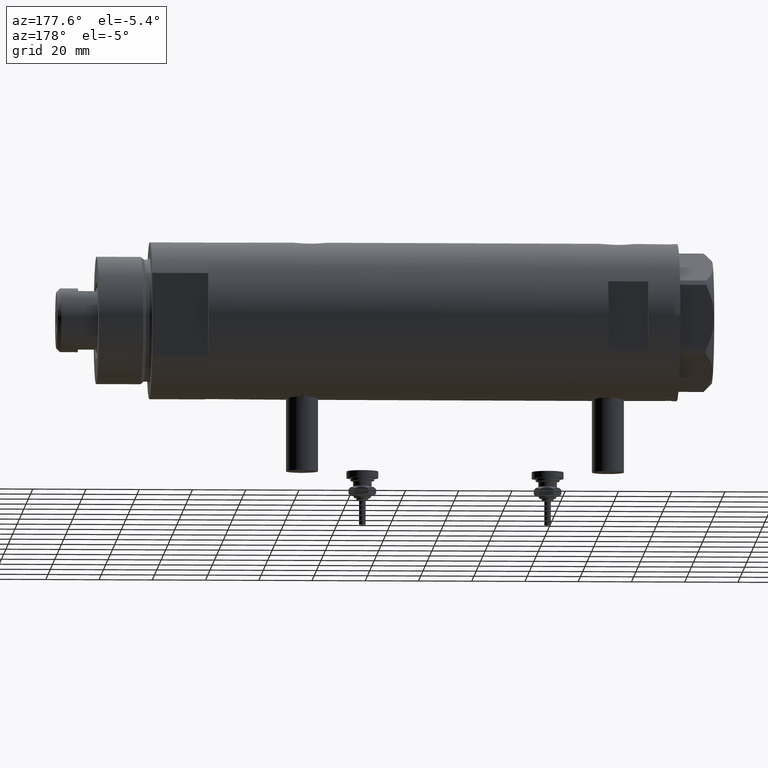
[diagram: clean part render]
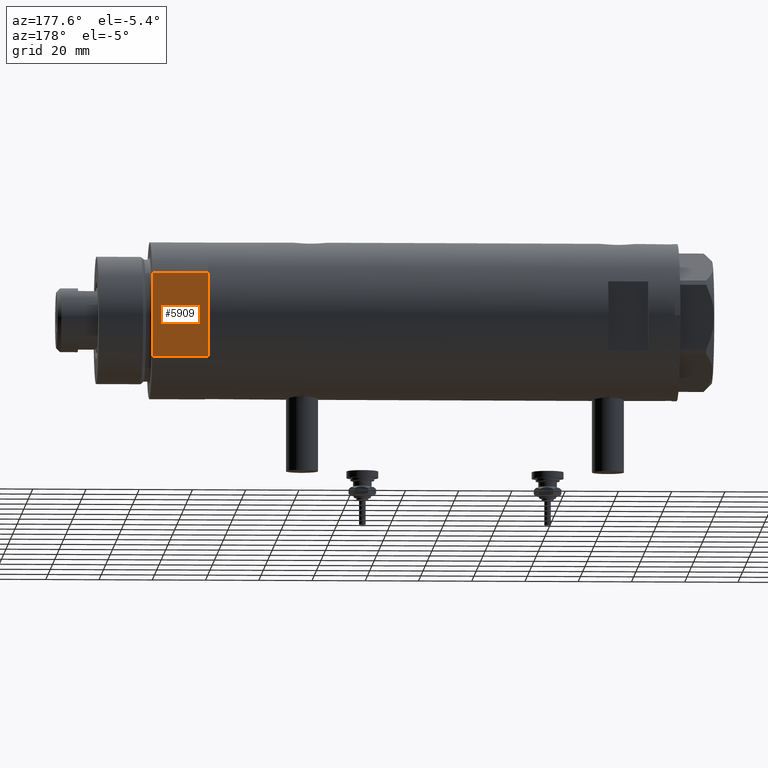
[diagram: same view with one face highlighted and labeled with its STEP entity id]
A machine part, auxiliary view. The second image highlights one B-rep face of the part: STEP entity #5909.
In plain terms, the highlighted planar face has unit normal (0, -1, -0).
Its self-contained STEP definition (entity closure, byte-faithful):
#4 = DIRECTION ( 'NONE',  ( 0.000000000000000000, -1.000000000000000000, 0.000000000000000000 ) ) ;
#62 = CARTESIAN_POINT ( 'NONE',  ( -15.66045976336583401, 25.00000000000000000, 0.000000000000000000 ) ) ;
#159 = EDGE_CURVE ( 'NONE', #5924, #4386, #3778, .T. ) ;
#371 = EDGE_CURVE ( 'NONE', #5373, #1771, #2660, .T. ) ;
#398 = ORIENTED_EDGE ( 'NONE', *, *, #1541, .T. ) ;
#450 = ORIENTED_EDGE ( 'NONE', *, *, #371, .F. ) ;
#526 = CARTESIAN_POINT ( 'NONE',  ( -15.66045976336583401, 25.00000000000000000, 0.000000000000000000 ) ) ;
#842 = VECTOR ( 'NONE', #2351, 1000.000000000000000 ) ;
#943 = LINE ( 'NONE', #4642, #842 ) ;
#1113 = CARTESIAN_POINT ( 'NONE',  ( 7.141428428542853091, 25.00000000000000000, 0.000000000000000000 ) ) ;
#1169 = EDGE_CURVE ( 'NONE', #5778, #5373, #1904, .T. ) ;
#1177 = EDGE_CURVE ( 'NONE', #4744, #1771, #943, .T. ) ;
#1210 = VECTOR ( 'NONE', #2828, 1000.000000000000000 ) ;
#1243 = ORIENTED_EDGE ( 'NONE', *, *, #159, .F. ) ;
#1252 = CARTESIAN_POINT ( 'NONE',  ( -15.66045976336583401, 25.00000000000000000, 0.000000000000000000 ) ) ;
#1342 = CARTESIAN_POINT ( 'NONE',  ( 15.66045976336582690, 25.00000000000000000, 0.000000000000000000 ) ) ;
#1541 = EDGE_CURVE ( 'NONE', #5924, #4744, #3187, .T. ) ;
#1704 = FACE_OUTER_BOUND ( 'NONE', #4564, .T. ) ;
#1771 = VERTEX_POINT ( 'NONE', #1989 ) ;
#1904 = LINE ( 'NONE', #2802, #5544 ) ;
#1989 = CARTESIAN_POINT ( 'NONE',  ( 15.66045976336583045, 24.99999999999999645, 20.99999999999999645 ) ) ;
#2029 = CARTESIAN_POINT ( 'NONE',  ( -15.66045976336583045, 24.99999999999999645, 21.00000000000000355 ) ) ;
#2300 = PLANE ( 'NONE',  #5099 ) ;
#2351 = DIRECTION ( 'NONE',  ( 1.000000000000000000, 0.000000000000000000, 0.000000000000000000 ) ) ;
#2374 = VECTOR ( 'NONE', #5029, 1000.000000000000000 ) ;
#2437 = DIRECTION ( 'NONE',  ( 1.000000000000000000, 0.000000000000000000, 0.000000000000000000 ) ) ;
#2660 = LINE ( 'NONE', #4090, #4103 ) ;
#2802 = CARTESIAN_POINT ( 'NONE',  ( -15.66045976336583401, 25.00000000000000000, 0.000000000000000000 ) ) ;
#2828 = DIRECTION ( 'NONE',  ( 1.000000000000000000, 0.000000000000000000, 0.000000000000000000 ) ) ;
#3059 = ORIENTED_EDGE ( 'NONE', *, *, #4266, .F. ) ;
#3187 = LINE ( 'NONE', #5838, #2374 ) ;
#3778 = LINE ( 'NONE', #526, #1210 ) ;
#3864 = ORIENTED_EDGE ( 'NONE', *, *, #1169, .F. ) ;
#4090 = CARTESIAN_POINT ( 'NONE',  ( 15.66045976336583401, 25.00000000000000000, 0.000000000000000000 ) ) ;
#4103 = VECTOR ( 'NONE', #4152, 1000.000000000000000 ) ;
#4152 = DIRECTION ( 'NONE',  ( -0.000000000000000000, -0.000000000000000000, 1.000000000000000000 ) ) ;
#4266 = EDGE_CURVE ( 'NONE', #4386, #5778, #5523, .T. ) ;
#4386 = VERTEX_POINT ( 'NONE', #4472 ) ;
#4472 = CARTESIAN_POINT ( 'NONE',  ( -7.141428428542853091, 25.00000000000000000, 0.000000000000000000 ) ) ;
#4521 = VECTOR ( 'NONE', #5043, 1000.000000000000000 ) ;
#4564 = EDGE_LOOP ( 'NONE', ( #5627, #450, #3864, #3059, #1243, #398 ) ) ;
#4642 = CARTESIAN_POINT ( 'NONE',  ( -15.66045976336583401, 25.00000000000000000, 21.00000000000000000 ) ) ;
#4744 = VERTEX_POINT ( 'NONE', #2029 ) ;
#5029 = DIRECTION ( 'NONE',  ( -0.000000000000000000, -0.000000000000000000, 1.000000000000000000 ) ) ;
#5040 = DIRECTION ( 'NONE',  ( 0.000000000000000000, -0.000000000000000000, -1.000000000000000000 ) ) ;
#5043 = DIRECTION ( 'NONE',  ( 1.000000000000000000, 0.000000000000000000, 0.000000000000000000 ) ) ;
#5099 = AXIS2_PLACEMENT_3D ( 'NONE', #62, #4, #5040 ) ;
#5106 = CARTESIAN_POINT ( 'NONE',  ( -15.66045976336583401, 25.00000000000000000, 0.000000000000000000 ) ) ;
#5373 = VERTEX_POINT ( 'NONE', #1342 ) ;
#5523 = LINE ( 'NONE', #5106, #4521 ) ;
#5544 = VECTOR ( 'NONE', #2437, 1000.000000000000000 ) ;
#5627 = ORIENTED_EDGE ( 'NONE', *, *, #1177, .T. ) ;
#5778 = VERTEX_POINT ( 'NONE', #1113 ) ;
#5838 = CARTESIAN_POINT ( 'NONE',  ( -15.66045976336583401, 25.00000000000000000, 0.000000000000000000 ) ) ;
#5909 = ADVANCED_FACE ( 'NONE', ( #1704 ), #2300, .F. ) ;
#5924 = VERTEX_POINT ( 'NONE', #1252 ) ;